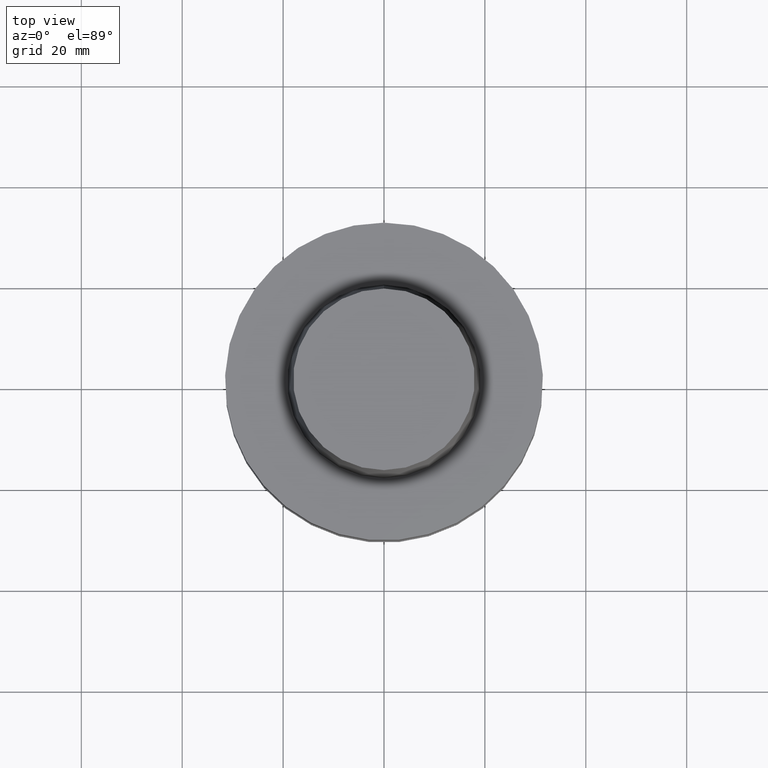
[diagram: clean part render]
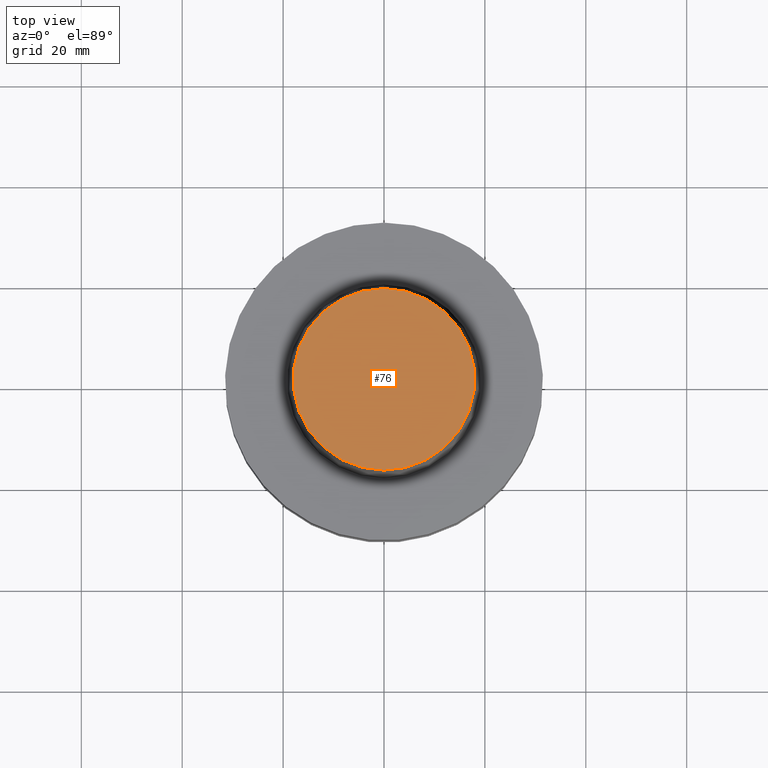
[diagram: same view with one face highlighted and labeled with its STEP entity id]
A machine part, top view. The second image highlights one B-rep face of the part: STEP entity #76.
In plain terms, the highlighted planar face has unit normal (-0, -0, 1).
Its self-contained STEP definition (entity closure, byte-faithful):
#76=ADVANCED_FACE('',(#93),#94,.T.);
#93=FACE_OUTER_BOUND('',#136,.T.);
#94=PLANE('',#137);
#136=EDGE_LOOP('',(#181));
#137=AXIS2_PLACEMENT_3D('',#182,#183,#184);
#181=ORIENTED_EDGE('',*,*,#251,.F.);
#182=CARTESIAN_POINT('',(-1.53080849893419E-015,9.00000000052154,25.0));
#183=DIRECTION('',(-6.12323399573677E-017,-1.22464679914735E-016,1.0));
#184=DIRECTION('',(1.23259516440783E-032,-1.0,-1.22464679914735E-016));
#251=EDGE_CURVE('',#266,#266,#267,.T.);
#266=VERTEX_POINT('',#294);
#267=CIRCLE('',#295,18.0000000010431);
#294=CARTESIAN_POINT('',(-1.53080849893419E-015,18.0000000010431,25.0));
#295=AXIS2_PLACEMENT_3D('',#323,#324,#325);
#323=CARTESIAN_POINT('',(-1.53080849893419E-015,-3.06161699786838E-015,25.0));
#324=DIRECTION('',(6.12323399573677E-017,1.22464679914735E-016,-1.0));
#325=DIRECTION('',(-1.23259516440783E-032,1.0,1.22464679914735E-016));